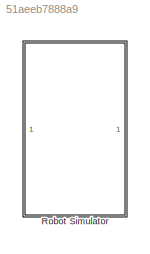
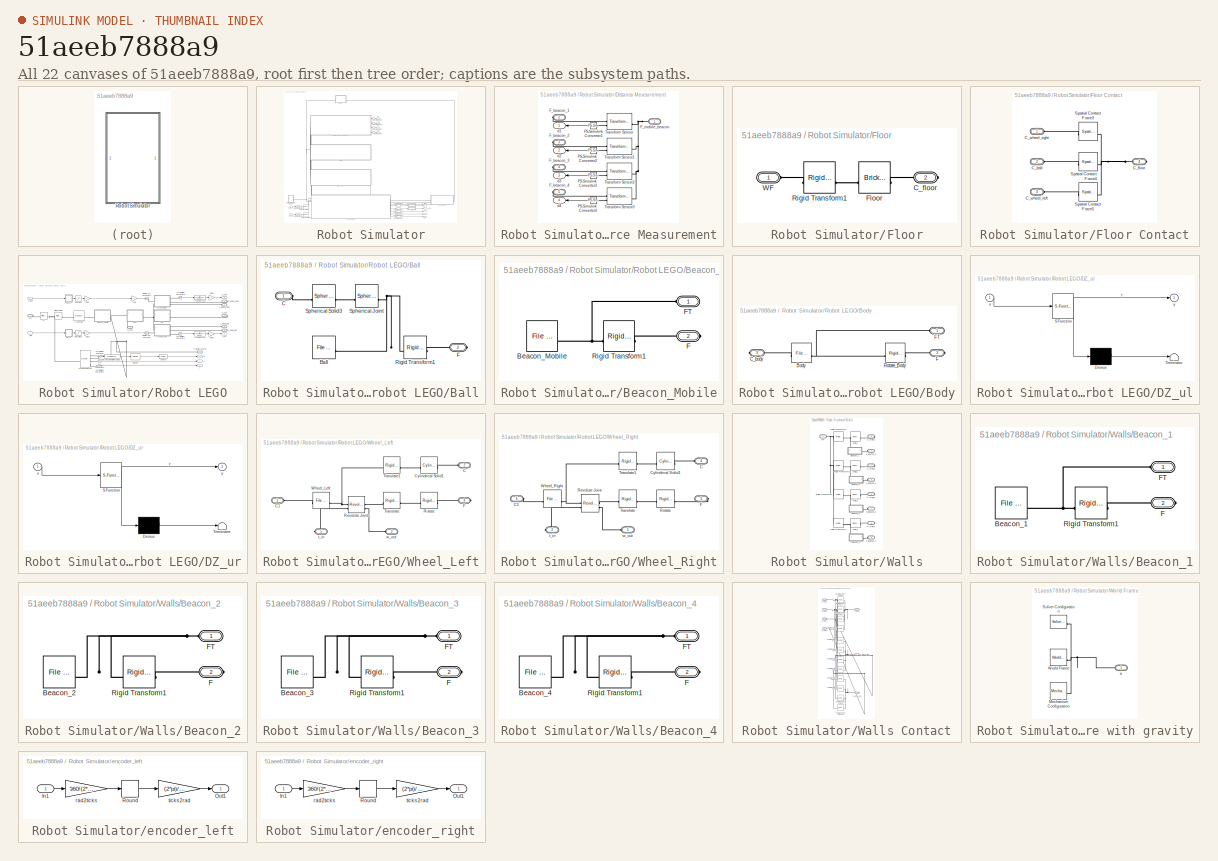
[diagram: thumbnail index - all 22 canvases of the model, root first then tree order]
MODEL slx_51aeeb7888a9
KIND model
CONFIG AbsTol = 1e-3
CONFIG EnableMultiTasking = on
CONFIG FixedStep = 0.0001
CONFIG InitFcn = % Robot Parameters\nKt = 0.003741357004383;\nD = 5.34730602234005E-4;\n\n% Frictional Force - Rubber\nFF1_CSF = 0.9284638557008941;\nFF1_CDF = 0.5059370572403004;\n\n% Frictional Force - Steel\nFF2_CSF = 0.6619328694233608;\nFF2_CDF = 0.4348835330132442;\n\n% Initial Robot Position\nX_0  = 1; % m\nY_0  = 0; % m\nTh_0 = 0; % rad\n\n% Inverse Kinematics\n% ROBOT MODEL PARAMETERS\nr = 0.028; % m - Wheel radius of vehic...<+236ch>
CONFIG MaxStep = auto
CONFIG MinStep = auto
CONFIG RelTol = 1e-3
CONFIG SampleTimeConstraint = Unconstrained
CONFIG SolverName = ode8
CONFIG StartTime = 0.0
CONFIG StopTime = 5
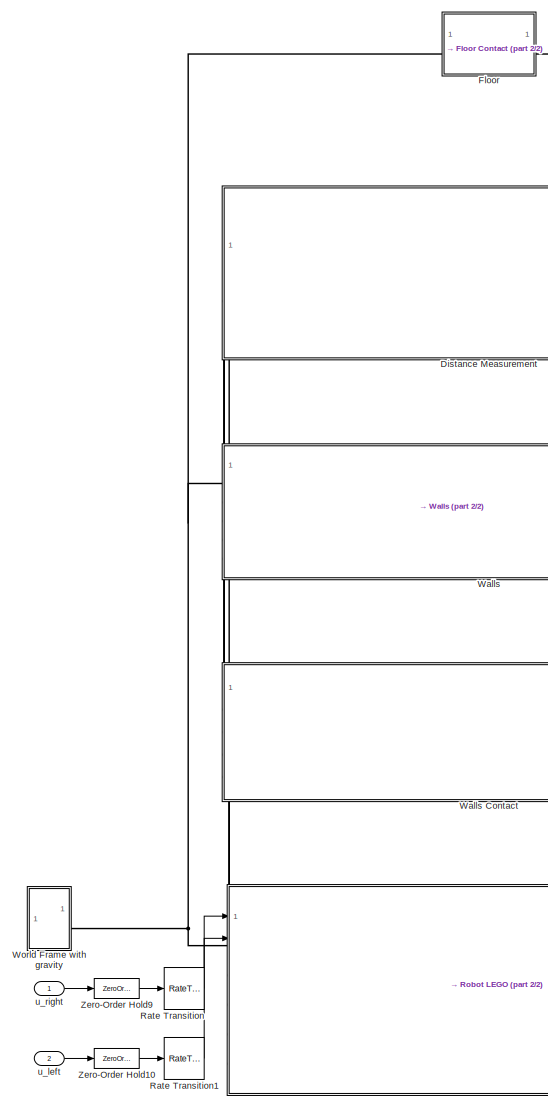
[diagram: Robot Simulator - part 1/2, left side, full height]
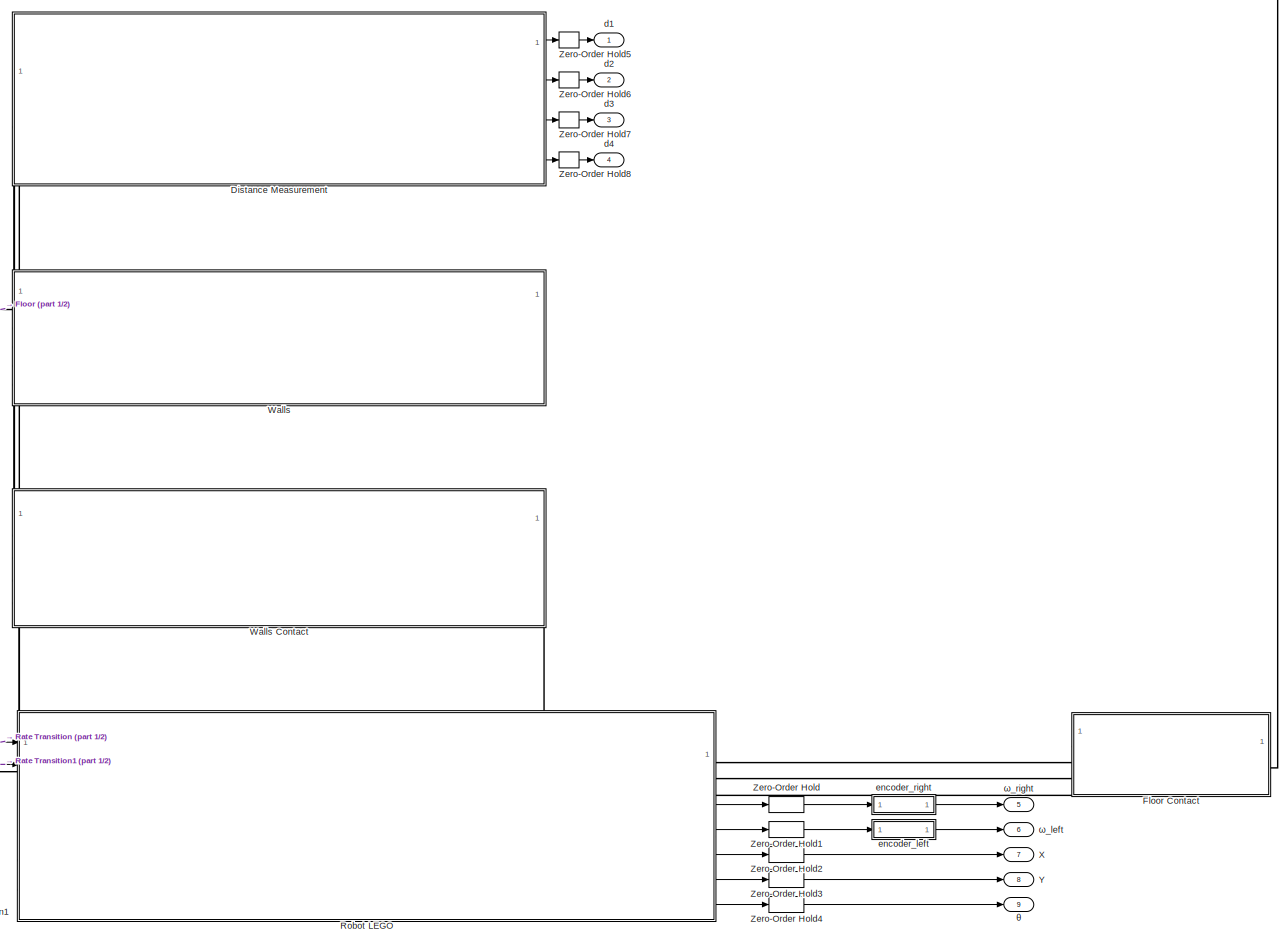
[diagram: Robot Simulator - part 2/2, most of the canvas]
BLOCK [SubSystem] Robot Simulator
BLOCK [SubSystem] Robot Simulator/Distance Measurement
  PortSchema = {"entries":[{"content":{"sides":[{"content":{"connectorIds":[]},"type":"ConnectorPlacement.EquallySpacedRectSide","uuid":"3f47ab04-4b76-437e-b8bc-2e939f58c128"},{"content":{"connectorIds":["Out1","Out2","Out3","Out4"],"side":"RIGHT"},"type":"ConnectorPlacement.EquallySpacedRectSide","uuid":"0a7d77bc-d78c-4d7c-bea5-44b269f1c126"},{"content":{"connectorIds":["LConn1"],"side":"TOP"},"type":"Connector...<+587ch>
BLOCK [PMIOPort] Robot Simulator/Distance Measurement/ F_beacon_1
  NameLocation = top
  Port = 2
  Side = Right
BLOCK [PMIOPort] Robot Simulator/Distance Measurement/F_beacon_2
  NameLocation = top
  Port = 3
  Side = Right
BLOCK [PMIOPort] Robot Simulator/Distance Measurement/F_beacon_3
  NameLocation = top
  Port = 4
  Side = Right
BLOCK [PMIOPort] Robot Simulator/Distance Measurement/F_beacon_4
  NameLocation = top
  Port = 5
  Side = Right
BLOCK [PMIOPort] Robot Simulator/Distance Measurement/F_mobile_beacon
  NameLocation = top
  Side = Left
BLOCK [Reference] Robot Simulator/Distance Measurement/PS-Simulink Converter1  REF=nesl_utility/PS-Simulink
Converter
  NameLocation = top
  SourceBlock = nesl_utility/PS-Simulink\nConverter
  SourceType = PS-Simulink\nConverter
BLOCK [Reference] Robot Simulator/Distance Measurement/PS-Simulink Converter2  REF=nesl_utility/PS-Simulink
Converter
  NameLocation = top
  SourceBlock = nesl_utility/PS-Simulink\nConverter
  SourceType = PS-Simulink\nConverter
BLOCK [Reference] Robot Simulator/Distance Measurement/PS-Simulink Converter3  REF=nesl_utility/PS-Simulink
Converter
  NameLocation = top
  SourceBlock = nesl_utility/PS-Simulink\nConverter
  SourceType = PS-Simulink\nConverter
BLOCK [Reference] Robot Simulator/Distance Measurement/PS-Simulink Converter4  REF=nesl_utility/PS-Simulink
Converter
  NameLocation = top
  SourceBlock = nesl_utility/PS-Simulink\nConverter
  SourceType = PS-Simulink\nConverter
BLOCK [Reference] Robot Simulator/Distance Measurement/Transform Sensor  REF=sm_lib/Frames and
Transforms/Transform
Sensor
  NameLocation = top
  SourceBlock = sm_lib/Frames and\nTransforms/Transform\nSensor
  SourceType = Transform\nSensor
BLOCK [Reference] Robot Simulator/Distance Measurement/Transform Sensor1  REF=sm_lib/Frames and
Transforms/Transform
Sensor
  NameLocation = top
  SourceBlock = sm_lib/Frames and\nTransforms/Transform\nSensor
  SourceType = Transform\nSensor
BLOCK [Reference] Robot Simulator/Distance Measurement/Transform Sensor2  REF=sm_lib/Frames and
Transforms/Transform
Sensor
  NameLocation = top
  SourceBlock = sm_lib/Frames and\nTransforms/Transform\nSensor
  SourceType = Transform\nSensor
BLOCK [Reference] Robot Simulator/Distance Measurement/Transform Sensor3  REF=sm_lib/Frames and
Transforms/Transform
Sensor
  NameLocation = top
  SourceBlock = sm_lib/Frames and\nTransforms/Transform\nSensor
  SourceType = Transform\nSensor
BLOCK [Outport] Robot Simulator/Distance Measurement/d1
  NameLocation = left
BLOCK [Outport] Robot Simulator/Distance Measurement/d2
  NameLocation = left
  Port = 2
BLOCK [Outport] Robot Simulator/Distance Measurement/d3
  NameLocation = left
  Port = 3
BLOCK [Outport] Robot Simulator/Distance Measurement/d4
  NameLocation = left
  Port = 4
BLOCK [SubSystem] Robot Simulator/Floor
BLOCK [SubSystem] Robot Simulator/Floor Contact
BLOCK [PMIOPort] Robot Simulator/Floor Contact/C_ball
  NameLocation = left
  Port = 2
  Side = Left
BLOCK [PMIOPort] Robot Simulator/Floor Contact/C_floor
  NameLocation = top
  Port = 4
  Side = Right
BLOCK [PMIOPort] Robot Simulator/Floor Contact/C_wheel_left
  NameLocation = left
  Port = 3
  Side = Left
BLOCK [PMIOPort] Robot Simulator/Floor Contact/C_wheel_right
  NameLocation = left
  Side = Left
BLOCK [Reference] Robot Simulator/Floor Contact/Spatial Contact Force3  REF=sm_lib/Forces and
Torques/Spatial
Contact Force
  NameLocation = top
  SourceBlock = sm_lib/Forces and\nTorques/Spatial\nContact Force
  SourceType = Spatial\nContact Force
BLOCK [Reference] Robot Simulator/Floor Contact/Spatial Contact Force4  REF=sm_lib/Forces and
Torques/Spatial
Contact Force
  NameLocation = top
  SourceBlock = sm_lib/Forces and\nTorques/Spatial\nContact Force
  SourceType = Spatial\nContact Force
BLOCK [Reference] Robot Simulator/Floor Contact/Spatial Contact Force5  REF=sm_lib/Forces and
Torques/Spatial
Contact Force
  NameLocation = top
  SourceBlock = sm_lib/Forces and\nTorques/Spatial\nContact Force
  SourceType = Spatial\nContact Force
BLOCK [PMIOPort] Robot Simulator/Floor/C_floor
  NameLocation = top
  Port = 2
  Side = Right
BLOCK [Reference] Robot Simulator/Floor/Floor  REF=sm_lib/Body Elements/Brick Solid
  NameLocation = top
  SourceBlock = sm_lib/Body Elements/Brick Solid
  SourceType = Brick Solid
BLOCK [Reference] Robot Simulator/Floor/Rigid Transform1  REF=sm_lib/Frames and
Transforms/Rigid
Transform
  SourceBlock = sm_lib/Frames and\nTransforms/Rigid\nTransform
  SourceType = Rigid\nTransform
BLOCK [PMIOPort] Robot Simulator/Floor/WF
  NameLocation = top
  Side = Left
BLOCK [RateTransition] Robot Simulator/Rate Transition
BLOCK [RateTransition] Robot Simulator/Rate Transition1
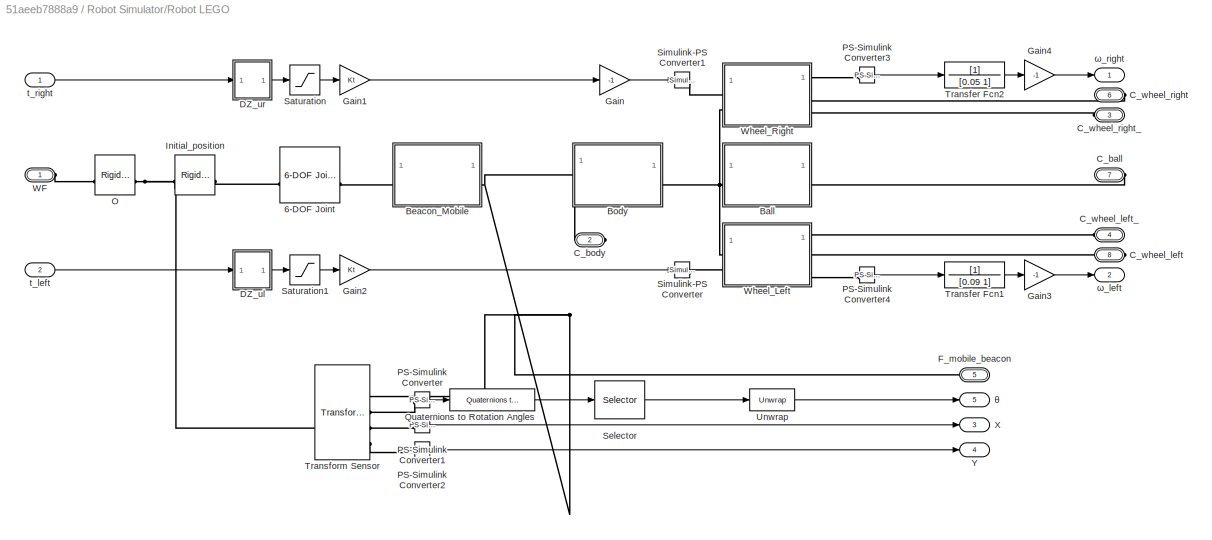
BLOCK [SubSystem] Robot Simulator/Robot LEGO
  PortSchema = {"entries":[{"content":{"sides":[{"content":{"connectorIds":["LConn1","In1","In2"]},"type":"ConnectorPlacement.EquallySpacedRectSide","uuid":"3745dc98-1e66-4b60-b925-e2dd9b5d1701"},{"content":{"connectorIds":["RConn1","RConn2","RConn3","Out1","Out2","Out3","Out4","Out5"],"side":"RIGHT"},"type":"ConnectorPlacement.EquallySpacedRectSide","uuid":"5cae1f17-a77c-47fa-a0e9-501bcfa0c672"},{"content":{"co...<+489ch>
BLOCK [Reference] Robot Simulator/Robot LEGO/6-DOF Joint  REF=sm_lib/Joints/6-DOF Joint
  SourceBlock = sm_lib/Joints/6-DOF Joint
  SourceType = 6-DOF Joint
BLOCK [SubSystem] Robot Simulator/Robot LEGO/Ball
BLOCK [Reference] Robot Simulator/Robot LEGO/Ball/Ball  REF=sm_lib/Body Elements/File Solid
  NameLocation = top
  SourceBlock = sm_lib/Body Elements/File Solid
  SourceType = File Solid
BLOCK [PMIOPort] Robot Simulator/Robot LEGO/Ball/C
  NameLocation = top
  Side = Left
BLOCK [PMIOPort] Robot Simulator/Robot LEGO/Ball/F
  Port = 2
  Side = Right
BLOCK [Reference] Robot Simulator/Robot LEGO/Ball/Rigid Transform1  REF=sm_lib/Frames and
Transforms/Rigid
Transform
  SourceBlock = sm_lib/Frames and\nTransforms/Rigid\nTransform
  SourceType = Rigid\nTransform
BLOCK [Reference] Robot Simulator/Robot LEGO/Ball/Spherical Joint  REF=sm_lib/Joints/Spherical
Joint
  SourceBlock = sm_lib/Joints/Spherical\nJoint
  SourceType = Spherical\nJoint
BLOCK [Reference] Robot Simulator/Robot LEGO/Ball/Spherical Solid3  REF=sm_lib/Body Elements/Spherical Solid
  NameLocation = top
  SourceBlock = sm_lib/Body Elements/Spherical Solid
  SourceType = Spherical Solid
BLOCK [SubSystem] Robot Simulator/Robot LEGO/Beacon_Mobile
BLOCK [Reference] Robot Simulator/Robot LEGO/Beacon_Mobile/Beacon_Mobile  REF=sm_lib/Body Elements/File Solid
  NameLocation = top
  SourceBlock = sm_lib/Body Elements/File Solid
  SourceType = File Solid
BLOCK [PMIOPort] Robot Simulator/Robot LEGO/Beacon_Mobile/F
  Port = 2
  Side = Right
BLOCK [PMIOPort] Robot Simulator/Robot LEGO/Beacon_Mobile/FT
  Side = Left
BLOCK [Reference] Robot Simulator/Robot LEGO/Beacon_Mobile/Rigid Transform1  REF=sm_lib/Frames and
Transforms/Rigid
Transform
  SourceBlock = sm_lib/Frames and\nTransforms/Rigid\nTransform
  SourceType = Rigid\nTransform
BLOCK [SubSystem] Robot Simulator/Robot LEGO/Body
  NameLocation = top
  PortSchema = {"entries":[{"content":{"sides":[{"content":{"connectorIds":["LConn1"]},"type":"ConnectorPlacement.EquallySpacedRectSide","uuid":"2a79041d-d4bb-4a89-80e8-e8109143e926"},{"content":{"connectorIds":["RConn1"],"side":"RIGHT"},"type":"ConnectorPlacement.EquallySpacedRectSide","uuid":"e9dc1adc-06bd-4a2c-b580-ae25a867185f"},{"content":{"connectorIds":[],"side":"TOP"},"type":"ConnectorPlacement.EquallySp...<+541ch>
BLOCK [Reference] Robot Simulator/Robot LEGO/Body/Body  REF=sm_lib/Body Elements/File Solid
  NameLocation = top
  SourceBlock = sm_lib/Body Elements/File Solid
  SourceType = File Solid
BLOCK [PMIOPort] Robot Simulator/Robot LEGO/Body/C_body
  NameLocation = left
  Port = 3
  Side = Right
BLOCK [PMIOPort] Robot Simulator/Robot LEGO/Body/F
  Port = 2
  Side = Right
BLOCK [PMIOPort] Robot Simulator/Robot LEGO/Body/FT
  Side = Left
BLOCK [Reference] Robot Simulator/Robot LEGO/Body/Rotate_Body  REF=sm_lib/Frames and
Transforms/Rigid
Transform
  SourceBlock = sm_lib/Frames and\nTransforms/Rigid\nTransform
  SourceType = Rigid\nTransform
BLOCK [PMIOPort] Robot Simulator/Robot LEGO/C_ball
  NameLocation = right
  Port = 7
  Side = Right
BLOCK [PMIOPort] Robot Simulator/Robot LEGO/C_body
  NameLocation = left
  Port = 2
  Side = Left
BLOCK [PMIOPort] Robot Simulator/Robot LEGO/C_wheel_left
  NameLocation = right
  Port = 8
  Side = Right
BLOCK [PMIOPort] Robot Simulator/Robot LEGO/C_wheel_left_
  NameLocation = right
  Port = 4
  Side = Left
BLOCK [PMIOPort] Robot Simulator/Robot LEGO/C_wheel_right
  NameLocation = right
  Port = 6
  Side = Right
BLOCK [PMIOPort] Robot Simulator/Robot LEGO/C_wheel_right_
  NameLocation = right
  Port = 3
  Side = Left
BLOCK [SubSystem] Robot Simulator/Robot LEGO/DZ_ul
  ErrorFcn = Stateflow.Translate.translate
  PermitHierarchicalResolution = ExplicitOnly
  SFBlockType = MATLAB Function
  TreatAsAtomicUnit = on
BLOCK [Demux] Robot Simulator/Robot LEGO/DZ_ul/ Demux 
  Outputs = 1
BLOCK [S-Function] Robot Simulator/Robot LEGO/DZ_ul/ SFunction 
  EnableBusSupport = on
  FunctionName = sf_sfun
  PortCounts = [1 2]
  SFcnIsStateOwnerBlock = off
  SFunctionDeploymentMode = off
  Tag = Stateflow S-Function 2
BLOCK [Terminator] Robot Simulator/Robot LEGO/DZ_ul/ Terminator 
BLOCK [Inport] Robot Simulator/Robot LEGO/DZ_ul/u
BLOCK [Outport] Robot Simulator/Robot LEGO/DZ_ul/y
BLOCK [SubSystem] Robot Simulator/Robot LEGO/DZ_ur
  ErrorFcn = Stateflow.Translate.translate
  PermitHierarchicalResolution = ExplicitOnly
  SFBlockType = MATLAB Function
  TreatAsAtomicUnit = on
BLOCK [Demux] Robot Simulator/Robot LEGO/DZ_ur/ Demux 
  Outputs = 1
BLOCK [S-Function] Robot Simulator/Robot LEGO/DZ_ur/ SFunction 
  EnableBusSupport = on
  FunctionName = sf_sfun
  PortCounts = [1 2]
  SFcnIsStateOwnerBlock = off
  SFunctionDeploymentMode = off
  Tag = Stateflow S-Function 1
BLOCK [Terminator] Robot Simulator/Robot LEGO/DZ_ur/ Terminator 
BLOCK [Inport] Robot Simulator/Robot LEGO/DZ_ur/u
BLOCK [Outport] Robot Simulator/Robot LEGO/DZ_ur/y
BLOCK [PMIOPort] Robot Simulator/Robot LEGO/F_mobile_beacon
  NameLocation = right
  Port = 5
  Side = Left
BLOCK [Gain] Robot Simulator/Robot LEGO/Gain
  Gain = -1
BLOCK [Gain] Robot Simulator/Robot LEGO/Gain1
  Gain = Kt
BLOCK [Gain] Robot Simulator/Robot LEGO/Gain2
  Gain = Kt
BLOCK [Gain] Robot Simulator/Robot LEGO/Gain3
  Commented = through
  Gain = -1
BLOCK [Gain] Robot Simulator/Robot LEGO/Gain4
  Gain = -1
BLOCK [Reference] Robot Simulator/Robot LEGO/Initial_position  REF=sm_lib/Frames and
Transforms/Rigid
Transform
  SourceBlock = sm_lib/Frames and\nTransforms/Rigid\nTransform
  SourceType = Rigid\nTransform
BLOCK [Reference] Robot Simulator/Robot LEGO/O  REF=sm_lib/Frames and
Transforms/Rigid
Transform
  SourceBlock = sm_lib/Frames and\nTransforms/Rigid\nTransform
  SourceType = Rigid\nTransform
BLOCK [Reference] Robot Simulator/Robot LEGO/PS-Simulink Converter  REF=nesl_utility/PS-Simulink
Converter
  SourceBlock = nesl_utility/PS-Simulink\nConverter
  SourceType = PS-Simulink\nConverter
BLOCK [Reference] Robot Simulator/Robot LEGO/PS-Simulink Converter1  REF=nesl_utility/PS-Simulink
Converter
  SourceBlock = nesl_utility/PS-Simulink\nConverter
  SourceType = PS-Simulink\nConverter
BLOCK [Reference] Robot Simulator/Robot LEGO/PS-Simulink Converter2  REF=nesl_utility/PS-Simulink
Converter
  SourceBlock = nesl_utility/PS-Simulink\nConverter
  SourceType = PS-Simulink\nConverter
BLOCK [Reference] Robot Simulator/Robot LEGO/PS-Simulink Converter3  REF=nesl_utility/PS-Simulink
Converter
  SourceBlock = nesl_utility/PS-Simulink\nConverter
  SourceType = PS-Simulink\nConverter
BLOCK [Reference] Robot Simulator/Robot LEGO/PS-Simulink Converter4  REF=nesl_utility/PS-Simulink
Converter
  SourceBlock = nesl_utility/PS-Simulink\nConverter
  SourceType = PS-Simulink\nConverter
BLOCK [Reference] Robot Simulator/Robot LEGO/Quaternions to Rotation Angles  REF=sharedtransform/Quaternions to Rotation Angles
  AttributesFormatString = Rotation Order: %<rotationOrder>
  SourceBlock = sharedtransform/Quaternions to Rotation Angles
  SourceType = Quat2Ang
BLOCK [Saturate] Robot Simulator/Robot LEGO/Saturation
  LowerLimit = -100
  UpperLimit = 100
BLOCK [Saturate] Robot Simulator/Robot LEGO/Saturation1
  LowerLimit = -100
  UpperLimit = 100
BLOCK [Selector] Robot Simulator/Robot LEGO/Selector
  IndexOptions = Index vector (dialog)
  Indices = [1]
  InputPortWidth = 3
  OutputSizes = 1
BLOCK [Reference] Robot Simulator/Robot LEGO/Simulink-PS Converter  REF=nesl_utility/Simulink-PS
Converter
  SourceBlock = nesl_utility/Simulink-PS\nConverter
  SourceType = Simulink-PS\nConverter
BLOCK [Reference] Robot Simulator/Robot LEGO/Simulink-PS Converter1  REF=nesl_utility/Simulink-PS
Converter
  SourceBlock = nesl_utility/Simulink-PS\nConverter
  SourceType = Simulink-PS\nConverter
BLOCK [TransferFcn] Robot Simulator/Robot LEGO/Transfer Fcn1
  Denominator = [0.09 1]
BLOCK [TransferFcn] Robot Simulator/Robot LEGO/Transfer Fcn2
  Denominator = [0.05 1]
BLOCK [Reference] Robot Simulator/Robot LEGO/Transform Sensor  REF=sm_lib/Frames and
Transforms/Transform
Sensor
  SourceBlock = sm_lib/Frames and\nTransforms/Transform\nSensor
  SourceType = Transform\nSensor
BLOCK [Reference] Robot Simulator/Robot LEGO/Unwrap  REF=dspsigops/Unwrap
  SourceBlock = dspsigops/Unwrap
  SourceType = Unwrap
  UserDataPersistent = on
BLOCK [PMIOPort] Robot Simulator/Robot LEGO/WF
  NameLocation = left
  Side = Left
BLOCK [SubSystem] Robot Simulator/Robot LEGO/Wheel_Left
BLOCK [PMIOPort] Robot Simulator/Robot LEGO/Wheel_Left/C
  Port = 2
  Side = Left
BLOCK [PMIOPort] Robot Simulator/Robot LEGO/Wheel_Left/C1
  NameLocation = top
  Side = Left
BLOCK [Reference] Robot Simulator/Robot LEGO/Wheel_Left/Cylindrical Solid1  REF=sm_lib/Body Elements/Cylindrical Solid
  NameLocation = top
  SourceBlock = sm_lib/Body Elements/Cylindrical Solid
  SourceType = Cylindrical Solid
BLOCK [PMIOPort] Robot Simulator/Robot LEGO/Wheel_Left/F
  Port = 4
  Side = Right
BLOCK [Reference] Robot Simulator/Robot LEGO/Wheel_Left/Revolute Joint  REF=sm_lib/Joints/Revolute Joint
  SourceBlock = sm_lib/Joints/Revolute Joint
  SourceType = Revolute Joint
BLOCK [Reference] Robot Simulator/Robot LEGO/Wheel_Left/Rotate  REF=sm_lib/Frames and
Transforms/Rigid
Transform
  SourceBlock = sm_lib/Frames and\nTransforms/Rigid\nTransform
  SourceType = Rigid\nTransform
BLOCK [Reference] Robot Simulator/Robot LEGO/Wheel_Left/Translate  REF=sm_lib/Frames and
Transforms/Rigid
Transform
  SourceBlock = sm_lib/Frames and\nTransforms/Rigid\nTransform
  SourceType = Rigid\nTransform
BLOCK [Reference] Robot Simulator/Robot LEGO/Wheel_Left/Translate1  REF=sm_lib/Frames and
Transforms/Rigid
Transform
  NameLocation = top
  SourceBlock = sm_lib/Frames and\nTransforms/Rigid\nTransform
  SourceType = Rigid\nTransform
BLOCK [Reference] Robot Simulator/Robot LEGO/Wheel_Left/Wheel_Left  REF=sm_lib/Body Elements/File Solid
  NameLocation = top
  SourceBlock = sm_lib/Body Elements/File Solid
  SourceType = File Solid
BLOCK [PMIOPort] Robot Simulator/Robot LEGO/Wheel_Left/t_in
  NameLocation = top
  Port = 5
  Side = Right
BLOCK [PMIOPort] Robot Simulator/Robot LEGO/Wheel_Left/w_out
  NameLocation = top
  Port = 3
  Side = Left
BLOCK [SubSystem] Robot Simulator/Robot LEGO/Wheel_Right
BLOCK [PMIOPort] Robot Simulator/Robot LEGO/Wheel_Right/C
  Port = 4
  Side = Left
BLOCK [PMIOPort] Robot Simulator/Robot LEGO/Wheel_Right/C1
  NameLocation = top
  Port = 5
  Side = Left
BLOCK [Reference] Robot Simulator/Robot LEGO/Wheel_Right/Cylindrical Solid1  REF=sm_lib/Body Elements/Cylindrical Solid
  NameLocation = top
  SourceBlock = sm_lib/Body Elements/Cylindrical Solid
  SourceType = Cylindrical Solid
BLOCK [PMIOPort] Robot Simulator/Robot LEGO/Wheel_Right/F
  Port = 3
  Side = Right
BLOCK [Reference] Robot Simulator/Robot LEGO/Wheel_Right/Revolute Joint  REF=sm_lib/Joints/Revolute Joint
  SourceBlock = sm_lib/Joints/Revolute Joint
  SourceType = Revolute Joint
BLOCK [Reference] Robot Simulator/Robot LEGO/Wheel_Right/Rotate  REF=sm_lib/Frames and
Transforms/Rigid
Transform
  SourceBlock = sm_lib/Frames and\nTransforms/Rigid\nTransform
  SourceType = Rigid\nTransform
BLOCK [Reference] Robot Simulator/Robot LEGO/Wheel_Right/Translate  REF=sm_lib/Frames and
Transforms/Rigid
Transform
  SourceBlock = sm_lib/Frames and\nTransforms/Rigid\nTransform
  SourceType = Rigid\nTransform
BLOCK [Reference] Robot Simulator/Robot LEGO/Wheel_Right/Translate1  REF=sm_lib/Frames and
Transforms/Rigid
Transform
  NameLocation = top
  SourceBlock = sm_lib/Frames and\nTransforms/Rigid\nTransform
  SourceType = Rigid\nTransform
BLOCK [Reference] Robot Simulator/Robot LEGO/Wheel_Right/Wheel_Right  REF=sm_lib/Body Elements/File Solid
  NameLocation = top
  SourceBlock = sm_lib/Body Elements/File Solid
  SourceType = File Solid
BLOCK [PMIOPort] Robot Simulator/Robot LEGO/Wheel_Right/t_in
  NameLocation = top
  Port = 2
  Side = Right
BLOCK [PMIOPort] Robot Simulator/Robot LEGO/Wheel_Right/w_out
  NameLocation = top
  Side = Left
BLOCK [Outport] Robot Simulator/Robot LEGO/X
  NameLocation = right
  Port = 3
BLOCK [Outport] Robot Simulator/Robot LEGO/Y
  NameLocation = right
  Port = 4
BLOCK [Inport] Robot Simulator/Robot LEGO/t_left
  NameLocation = left
  Port = 2
BLOCK [Inport] Robot Simulator/Robot LEGO/t_right
  NameLocation = left
BLOCK [Outport] Robot Simulator/Robot LEGO/θ
  NameLocation = right
  Port = 5
BLOCK [Outport] Robot Simulator/Robot LEGO/ω_left
  NameLocation = right
  Port = 2
BLOCK [Outport] Robot Simulator/Robot LEGO/ω_right
  NameLocation = right
BLOCK [SubSystem] Robot Simulator/Walls
  PortSchema = {"entries":[{"content":{"sides":[{"content":{"connectorIds":["LConn1"]},"type":"ConnectorPlacement.EquallySpacedRectSide","uuid":"085e49d9-94af-4a62-b5cf-52d0ec64dfe6"},{"content":{"connectorIds":[],"side":"RIGHT"},"type":"ConnectorPlacement.EquallySpacedRectSide","uuid":"3b04bbf5-b05a-4de3-a22a-d1fff3a1f449"},{"content":{"connectorIds":["LConn2","LConn3","LConn4","LConn5"],"side":"TOP"},"type":"C...<+595ch>
BLOCK [SubSystem] Robot Simulator/Walls Contact
  NameLocation = top
  PortSchema = {"entries":[{"content":{"sides":[{"content":{"connectorIds":[]},"type":"ConnectorPlacement.EquallySpacedRectSide","uuid":"7dfcd518-b49f-4e91-b0dd-a865cbfaed41"},{"content":{"connectorIds":[],"side":"RIGHT"},"type":"ConnectorPlacement.EquallySpacedRectSide","uuid":"cfb2bd1c-65ce-4397-9519-784840b32785"},{"content":{"connectorIds":["LConn1","LConn2","LConn3","LConn4"],"side":"TOP"},"type":"Connector...<+578ch>
BLOCK [PMIOPort] Robot Simulator/Walls Contact/C_body
  NameLocation = top
  Port = 5
  Side = Right
BLOCK [PMIOPort] Robot Simulator/Walls Contact/C_wall_1
  NameLocation = left
  Side = Left
BLOCK [PMIOPort] Robot Simulator/Walls Contact/C_wall_2
  NameLocation = left
  Port = 2
  Side = Left
BLOCK [PMIOPort] Robot Simulator/Walls Contact/C_wall_3
  NameLocation = left
  Port = 3
  Side = Left
BLOCK [PMIOPort] Robot Simulator/Walls Contact/C_wall_4
  NameLocation = left
  Port = 4
  Side = Left
BLOCK [PMIOPort] Robot Simulator/Walls Contact/C_wheel_left_
  Port = 7
  Side = Right
BLOCK [PMIOPort] Robot Simulator/Walls Contact/C_wheel_right_
  Port = 6
  Side = Right
BLOCK [Reference] Robot Simulator/Walls Contact/Spatial Contact Force  REF=sm_lib/Forces and
Torques/Spatial
Contact Force
  SourceBlock = sm_lib/Forces and\nTorques/Spatial\nContact Force
  SourceType = Spatial\nContact Force
BLOCK [Reference] Robot Simulator/Walls Contact/Spatial Contact Force1  REF=sm_lib/Forces and
Torques/Spatial
Contact Force
  SourceBlock = sm_lib/Forces and\nTorques/Spatial\nContact Force
  SourceType = Spatial\nContact Force
BLOCK [Reference] Robot Simulator/Walls Contact/Spatial Contact Force10  REF=sm_lib/Forces and
Torques/Spatial
Contact Force
  SourceBlock = sm_lib/Forces and\nTorques/Spatial\nContact Force
  SourceType = Spatial\nContact Force
BLOCK [Reference] Robot Simulator/Walls Contact/Spatial Contact Force11  REF=sm_lib/Forces and
Torques/Spatial
Contact Force
  SourceBlock = sm_lib/Forces and\nTorques/Spatial\nContact Force
  SourceType = Spatial\nContact Force
BLOCK [Reference] Robot Simulator/Walls Contact/Spatial Contact Force2  REF=sm_lib/Forces and
Torques/Spatial
Contact Force
  SourceBlock = sm_lib/Forces and\nTorques/Spatial\nContact Force
  SourceType = Spatial\nContact Force
BLOCK [Reference] Robot Simulator/Walls Contact/Spatial Contact Force3  REF=sm_lib/Forces and
Torques/Spatial
Contact Force
  SourceBlock = sm_lib/Forces and\nTorques/Spatial\nContact Force
  SourceType = Spatial\nContact Force
BLOCK [Reference] Robot Simulator/Walls Contact/Spatial Contact Force4  REF=sm_lib/Forces and
Torques/Spatial
Contact Force
  SourceBlock = sm_lib/Forces and\nTorques/Spatial\nContact Force
  SourceType = Spatial\nContact Force
BLOCK [Reference] Robot Simulator/Walls Contact/Spatial Contact Force5  REF=sm_lib/Forces and
Torques/Spatial
Contact Force
  SourceBlock = sm_lib/Forces and\nTorques/Spatial\nContact Force
  SourceType = Spatial\nContact Force
BLOCK [Reference] Robot Simulator/Walls Contact/Spatial Contact Force6  REF=sm_lib/Forces and
Torques/Spatial
Contact Force
  SourceBlock = sm_lib/Forces and\nTorques/Spatial\nContact Force
  SourceType = Spatial\nContact Force
BLOCK [Reference] Robot Simulator/Walls Contact/Spatial Contact Force7  REF=sm_lib/Forces and
Torques/Spatial
Contact Force
  SourceBlock = sm_lib/Forces and\nTorques/Spatial\nContact Force
  SourceType = Spatial\nContact Force
BLOCK [Reference] Robot Simulator/Walls Contact/Spatial Contact Force8  REF=sm_lib/Forces and
Torques/Spatial
Contact Force
  SourceBlock = sm_lib/Forces and\nTorques/Spatial\nContact Force
  SourceType = Spatial\nContact Force
BLOCK [Reference] Robot Simulator/Walls Contact/Spatial Contact Force9  REF=sm_lib/Forces and
Torques/Spatial
Contact Force
  SourceBlock = sm_lib/Forces and\nTorques/Spatial\nContact Force
  SourceType = Spatial\nContact Force
BLOCK [SubSystem] Robot Simulator/Walls/Beacon_1
  NameLocation = top
BLOCK [Reference] Robot Simulator/Walls/Beacon_1/Beacon_1  REF=sm_lib/Body Elements/File Solid
  NameLocation = top
  SourceBlock = sm_lib/Body Elements/File Solid
  SourceType = File Solid
BLOCK [PMIOPort] Robot Simulator/Walls/Beacon_1/F
  Port = 2
  Side = Right
BLOCK [PMIOPort] Robot Simulator/Walls/Beacon_1/FT
  Side = Left
BLOCK [Reference] Robot Simulator/Walls/Beacon_1/Rigid Transform1  REF=sm_lib/Frames and
Transforms/Rigid
Transform
  SourceBlock = sm_lib/Frames and\nTransforms/Rigid\nTransform
  SourceType = Rigid\nTransform
BLOCK [SubSystem] Robot Simulator/Walls/Beacon_2
  NameLocation = top
BLOCK [Reference] Robot Simulator/Walls/Beacon_2/Beacon_2  REF=sm_lib/Body Elements/File Solid
  NameLocation = top
  SourceBlock = sm_lib/Body Elements/File Solid
  SourceType = File Solid
BLOCK [PMIOPort] Robot Simulator/Walls/Beacon_2/F
  Port = 2
  Side = Right
BLOCK [PMIOPort] Robot Simulator/Walls/Beacon_2/FT
  Side = Left
BLOCK [Reference] Robot Simulator/Walls/Beacon_2/Rigid Transform1  REF=sm_lib/Frames and
Transforms/Rigid
Transform
  SourceBlock = sm_lib/Frames and\nTransforms/Rigid\nTransform
  SourceType = Rigid\nTransform
BLOCK [SubSystem] Robot Simulator/Walls/Beacon_3
  NameLocation = top
BLOCK [Reference] Robot Simulator/Walls/Beacon_3/Beacon_3  REF=sm_lib/Body Elements/File Solid
  NameLocation = top
  SourceBlock = sm_lib/Body Elements/File Solid
  SourceType = File Solid
BLOCK [PMIOPort] Robot Simulator/Walls/Beacon_3/F
  Port = 2
  Side = Right
BLOCK [PMIOPort] Robot Simulator/Walls/Beacon_3/FT
  Side = Left
BLOCK [Reference] Robot Simulator/Walls/Beacon_3/Rigid Transform1  REF=sm_lib/Frames and
Transforms/Rigid
Transform
  SourceBlock = sm_lib/Frames and\nTransforms/Rigid\nTransform
  SourceType = Rigid\nTransform
BLOCK [SubSystem] Robot Simulator/Walls/Beacon_4
  NameLocation = top
BLOCK [Reference] Robot Simulator/Walls/Beacon_4/Beacon_4  REF=sm_lib/Body Elements/File Solid
  NameLocation = top
  SourceBlock = sm_lib/Body Elements/File Solid
  SourceType = File Solid
BLOCK [PMIOPort] Robot Simulator/Walls/Beacon_4/F
  Port = 2
  Side = Right
BLOCK [PMIOPort] Robot Simulator/Walls/Beacon_4/FT
  Side = Left
BLOCK [Reference] Robot Simulator/Walls/Beacon_4/Rigid Transform1  REF=sm_lib/Frames and
Transforms/Rigid
Transform
  SourceBlock = sm_lib/Frames and\nTransforms/Rigid\nTransform
  SourceType = Rigid\nTransform
BLOCK [PMIOPort] Robot Simulator/Walls/C_wall_1
  NameLocation = top
  Port = 6
  Side = Right
BLOCK [PMIOPort] Robot Simulator/Walls/C_wall_2
  NameLocation = top
  Port = 7
  Side = Right
BLOCK [PMIOPort] Robot Simulator/Walls/C_wall_3
  NameLocation = top
  Port = 8
  Side = Right
BLOCK [PMIOPort] Robot Simulator/Walls/C_wall_4
  NameLocation = top
  Port = 9
  Side = Right
BLOCK [PMIOPort] Robot Simulator/Walls/F_beacon_1
  NameLocation = top
  Port = 2
  Side = Left
BLOCK [PMIOPort] Robot Simulator/Walls/F_beacon_2
  NameLocation = top
  Port = 3
  Side = Left
BLOCK [PMIOPort] Robot Simulator/Walls/F_beacon_3
  NameLocation = top
  Port = 4
  Side = Left
BLOCK [PMIOPort] Robot Simulator/Walls/F_beacon_4
  NameLocation = top
  Port = 5
  Side = Left
BLOCK [Reference] Robot Simulator/Walls/Rigid Transform1  REF=sm_lib/Frames and
Transforms/Rigid
Transform
  SourceBlock = sm_lib/Frames and\nTransforms/Rigid\nTransform
  SourceType = Rigid\nTransform
BLOCK [Reference] Robot Simulator/Walls/Rigid Transform2  REF=sm_lib/Frames and
Transforms/Rigid
Transform
  SourceBlock = sm_lib/Frames and\nTransforms/Rigid\nTransform
  SourceType = Rigid\nTransform
BLOCK [Reference] Robot Simulator/Walls/Rigid Transform3  REF=sm_lib/Frames and
Transforms/Rigid
Transform
  SourceBlock = sm_lib/Frames and\nTransforms/Rigid\nTransform
  SourceType = Rigid\nTransform
BLOCK [Reference] Robot Simulator/Walls/Rigid Transform4  REF=sm_lib/Frames and
Transforms/Rigid
Transform
  SourceBlock = sm_lib/Frames and\nTransforms/Rigid\nTransform
  SourceType = Rigid\nTransform
BLOCK [PMIOPort] Robot Simulator/Walls/WF
  NameLocation = top
  Side = Left
BLOCK [Reference] Robot Simulator/Walls/Wall_1  REF=sm_lib/Body Elements/Brick Solid
  NameLocation = top
  SourceBlock = sm_lib/Body Elements/Brick Solid
  SourceType = Brick Solid
BLOCK [Reference] Robot Simulator/Walls/Wall_2  REF=sm_lib/Body Elements/Brick Solid
  NameLocation = top
  SourceBlock = sm_lib/Body Elements/Brick Solid
  SourceType = Brick Solid
BLOCK [Reference] Robot Simulator/Walls/Wall_3  REF=sm_lib/Body Elements/Brick Solid
  NameLocation = top
  SourceBlock = sm_lib/Body Elements/Brick Solid
  SourceType = Brick Solid
BLOCK [Reference] Robot Simulator/Walls/Wall_4  REF=sm_lib/Body Elements/Brick Solid
  NameLocation = top
  SourceBlock = sm_lib/Body Elements/Brick Solid
  SourceType = Brick Solid
BLOCK [SubSystem] Robot Simulator/World Frame with gravity
BLOCK [Reference] Robot Simulator/World Frame with gravity/Mechanism Configuration  REF=sm_lib/Utilities/Mechanism
Configuration
  SourceBlock = sm_lib/Utilities/Mechanism\nConfiguration
  SourceType = Mechanism\nConfiguration
BLOCK [Reference] Robot Simulator/World Frame with gravity/Solver Configuration  REF=nesl_utility/Solver
Configuration
  SourceBlock = nesl_utility/Solver\nConfiguration
  SourceType = Solver\nConfiguration
BLOCK [Reference] Robot Simulator/World Frame with gravity/World Frame  REF=sm_lib/Frames and
Transforms/World Frame
  SourceBlock = sm_lib/Frames and\nTransforms/World Frame
  SourceType = World Frame
BLOCK [PMIOPort] Robot Simulator/World Frame with gravity/a
  Side = Right
BLOCK [Outport] Robot Simulator/X
  NameLocation = right
  Port = 7
BLOCK [Outport] Robot Simulator/Y
  NameLocation = right
  Port = 8
BLOCK [ZeroOrderHold] Robot Simulator/Zero-Order Hold
  SampleTime = T
BLOCK [ZeroOrderHold] Robot Simulator/Zero-Order Hold1
  SampleTime = T
BLOCK [ZeroOrderHold] Robot Simulator/Zero-Order Hold10
  SampleTime = T
BLOCK [ZeroOrderHold] Robot Simulator/Zero-Order Hold2
  SampleTime = T
BLOCK [ZeroOrderHold] Robot Simulator/Zero-Order Hold3
  SampleTime = T
BLOCK [ZeroOrderHold] Robot Simulator/Zero-Order Hold4
  SampleTime = T
BLOCK [ZeroOrderHold] Robot Simulator/Zero-Order Hold5
  SampleTime = T
BLOCK [ZeroOrderHold] Robot Simulator/Zero-Order Hold6
  SampleTime = T
BLOCK [ZeroOrderHold] Robot Simulator/Zero-Order Hold7
  SampleTime = T
BLOCK [ZeroOrderHold] Robot Simulator/Zero-Order Hold8
  SampleTime = T
BLOCK [ZeroOrderHold] Robot Simulator/Zero-Order Hold9
  SampleTime = T
BLOCK [Outport] Robot Simulator/d1
BLOCK [Outport] Robot Simulator/d2
  Port = 2
BLOCK [Outport] Robot Simulator/d3
  Port = 3
BLOCK [Outport] Robot Simulator/d4
  Port = 4
BLOCK [SubSystem] Robot Simulator/encoder_left
BLOCK [Inport] Robot Simulator/encoder_left/In1
BLOCK [Outport] Robot Simulator/encoder_left/Out1
BLOCK [Rounding] Robot Simulator/encoder_left/Round
  Operator = round
BLOCK [Gain] Robot Simulator/encoder_left/rad2ticks
  Gain = 360/(2*pi)
BLOCK [Gain] Robot Simulator/encoder_left/ticks2rad
  Gain = (2*pi)/360
BLOCK [SubSystem] Robot Simulator/encoder_right
  NameLocation = top
BLOCK [Inport] Robot Simulator/encoder_right/In1
BLOCK [Outport] Robot Simulator/encoder_right/Out1
BLOCK [Rounding] Robot Simulator/encoder_right/Round
  Operator = round
BLOCK [Gain] Robot Simulator/encoder_right/rad2ticks
  Gain = 360/(2*pi)
BLOCK [Gain] Robot Simulator/encoder_right/ticks2rad
  Gain = (2*pi)/360
BLOCK [Inport] Robot Simulator/u_left
  Port = 2
BLOCK [Inport] Robot Simulator/u_right
BLOCK [Outport] Robot Simulator/θ
  NameLocation = right
  Port = 9
BLOCK [Outport] Robot Simulator/ω_left
  NameLocation = right
  Port = 6
BLOCK [Outport] Robot Simulator/ω_right
  NameLocation = right
  Port = 5
LINE Robot Simulator/Distance Measurement/PS-Simulink Converter1:1 -> Robot Simulator/Distance Measurement/d1:1
LINE Robot Simulator/Distance Measurement/PS-Simulink Converter2:1 -> Robot Simulator/Distance Measurement/d2:1
LINE Robot Simulator/Distance Measurement/PS-Simulink Converter3:1 -> Robot Simulator/Distance Measurement/d3:1
LINE Robot Simulator/Distance Measurement/PS-Simulink Converter4:1 -> Robot Simulator/Distance Measurement/d4:1
LINE Robot Simulator/Distance Measurement:1 -> Robot Simulator/Zero-Order Hold5:1
LINE Robot Simulator/Distance Measurement:2 -> Robot Simulator/Zero-Order Hold6:1
LINE Robot Simulator/Distance Measurement:3 -> Robot Simulator/Zero-Order Hold7:1
LINE Robot Simulator/Distance Measurement:4 -> Robot Simulator/Zero-Order Hold8:1
LINE Robot Simulator/Rate Transition1:1 -> Robot Simulator/Robot LEGO:2
LINE Robot Simulator/Rate Transition:1 -> Robot Simulator/Robot LEGO:1
LINE Robot Simulator/Robot LEGO/DZ_ul:1 -> Robot Simulator/Robot LEGO/Saturation1:1
LINE Robot Simulator/Robot LEGO/DZ_ur:1 -> Robot Simulator/Robot LEGO/Saturation:1
LINE Robot Simulator/Robot LEGO/Gain1:1 -> Robot Simulator/Robot LEGO/Gain:1
LINE Robot Simulator/Robot LEGO/Gain2:1 -> Robot Simulator/Robot LEGO/Simulink-PS Converter:1
LINE Robot Simulator/Robot LEGO/Gain3:1 -> Robot Simulator/Robot LEGO/ω_left:1
LINE Robot Simulator/Robot LEGO/Gain4:1 -> Robot Simulator/Robot LEGO/ω_right:1
LINE Robot Simulator/Robot LEGO/Gain:1 -> Robot Simulator/Robot LEGO/Simulink-PS Converter1:1
LINE Robot Simulator/Robot LEGO/PS-Simulink Converter1:1 -> Robot Simulator/Robot LEGO/X:1
LINE Robot Simulator/Robot LEGO/PS-Simulink Converter2:1 -> Robot Simulator/Robot LEGO/Y:1
LINE Robot Simulator/Robot LEGO/PS-Simulink Converter3:1 -> Robot Simulator/Robot LEGO/Transfer Fcn2:1
LINE Robot Simulator/Robot LEGO/PS-Simulink Converter4:1 -> Robot Simulator/Robot LEGO/Transfer Fcn1:1
LINE Robot Simulator/Robot LEGO/PS-Simulink Converter:1 -> Robot Simulator/Robot LEGO/Quaternions to Rotation Angles:1
LINE Robot Simulator/Robot LEGO/Quaternions to Rotation Angles:1 -> Robot Simulator/Robot LEGO/Selector:1
LINE Robot Simulator/Robot LEGO/Saturation1:1 -> Robot Simulator/Robot LEGO/Gain2:1
LINE Robot Simulator/Robot LEGO/Saturation:1 -> Robot Simulator/Robot LEGO/Gain1:1
LINE Robot Simulator/Robot LEGO/Selector:1 -> Robot Simulator/Robot LEGO/Unwrap:1
LINE Robot Simulator/Robot LEGO/Transfer Fcn1:1 -> Robot Simulator/Robot LEGO/Gain3:1
LINE Robot Simulator/Robot LEGO/Transfer Fcn2:1 -> Robot Simulator/Robot LEGO/Gain4:1
LINE Robot Simulator/Robot LEGO/Unwrap:1 -> Robot Simulator/Robot LEGO/θ:1
LINE Robot Simulator/Robot LEGO/t_left:1 -> Robot Simulator/Robot LEGO/DZ_ul:1
LINE Robot Simulator/Robot LEGO/t_right:1 -> Robot Simulator/Robot LEGO/DZ_ur:1
LINE Robot Simulator/Robot LEGO:1 -> Robot Simulator/Zero-Order Hold:1
LINE Robot Simulator/Robot LEGO:2 -> Robot Simulator/Zero-Order Hold1:1
LINE Robot Simulator/Robot LEGO:3 -> Robot Simulator/Zero-Order Hold2:1
LINE Robot Simulator/Robot LEGO:4 -> Robot Simulator/Zero-Order Hold3:1
LINE Robot Simulator/Robot LEGO:5 -> Robot Simulator/Zero-Order Hold4:1
LINE Robot Simulator/Zero-Order Hold10:1 -> Robot Simulator/Rate Transition1:1
LINE Robot Simulator/Zero-Order Hold1:1 -> Robot Simulator/encoder_left:1
LINE Robot Simulator/Zero-Order Hold2:1 -> Robot Simulator/X:1
LINE Robot Simulator/Zero-Order Hold3:1 -> Robot Simulator/Y:1
LINE Robot Simulator/Zero-Order Hold4:1 -> Robot Simulator/θ:1
LINE Robot Simulator/Zero-Order Hold5:1 -> Robot Simulator/d1:1
LINE Robot Simulator/Zero-Order Hold6:1 -> Robot Simulator/d2:1
LINE Robot Simulator/Zero-Order Hold7:1 -> Robot Simulator/d3:1
LINE Robot Simulator/Zero-Order Hold8:1 -> Robot Simulator/d4:1
LINE Robot Simulator/Zero-Order Hold9:1 -> Robot Simulator/Rate Transition:1
LINE Robot Simulator/Zero-Order Hold:1 -> Robot Simulator/encoder_right:1
LINE Robot Simulator/encoder_left/In1:1 -> Robot Simulator/encoder_left/rad2ticks:1
LINE Robot Simulator/encoder_left/Round:1 -> Robot Simulator/encoder_left/ticks2rad:1
LINE Robot Simulator/encoder_left/rad2ticks:1 -> Robot Simulator/encoder_left/Round:1
LINE Robot Simulator/encoder_left/ticks2rad:1 -> Robot Simulator/encoder_left/Out1:1
LINE Robot Simulator/encoder_left:1 -> Robot Simulator/ω_left:1
LINE Robot Simulator/encoder_right/In1:1 -> Robot Simulator/encoder_right/rad2ticks:1
LINE Robot Simulator/encoder_right/Round:1 -> Robot Simulator/encoder_right/ticks2rad:1
LINE Robot Simulator/encoder_right/rad2ticks:1 -> Robot Simulator/encoder_right/Round:1
LINE Robot Simulator/encoder_right/ticks2rad:1 -> Robot Simulator/encoder_right/Out1:1
LINE Robot Simulator/encoder_right:1 -> Robot Simulator/ω_right:1
LINE Robot Simulator/u_left:1 -> Robot Simulator/Zero-Order Hold10:1
LINE Robot Simulator/u_right:1 -> Robot Simulator/Zero-Order Hold9:1
PLINE Robot Simulator/Distance Measurement/ F_beacon_1:RConn1 -- Robot Simulator/Distance Measurement/Transform Sensor:RConn1
PLINE Robot Simulator/Distance Measurement/F_beacon_2:RConn1 -- Robot Simulator/Distance Measurement/Transform Sensor1:RConn1
PLINE Robot Simulator/Distance Measurement/F_beacon_3:RConn1 -- Robot Simulator/Distance Measurement/Transform Sensor2:RConn1
PLINE Robot Simulator/Distance Measurement/F_beacon_4:RConn1 -- Robot Simulator/Distance Measurement/Transform Sensor3:RConn1
PNET net1: Robot Simulator/Distance Measurement/F_mobile_beacon:RConn1 -- Robot Simulator/Distance Measurement/Transform Sensor1:LConn1 -- Robot Simulator/Distance Measurement/Transform Sensor2:LConn1 -- Robot Simulator/Distance Measurement/Transform Sensor3:LConn1 -- Robot Simulator/Distance Measurement/Transform Sensor:LConn1
PLINE Robot Simulator/Distance Measurement/PS-Simulink Converter1:LConn1 -- Robot Simulator/Distance Measurement/Transform Sensor:RConn2
PLINE Robot Simulator/Distance Measurement/PS-Simulink Converter2:LConn1 -- Robot Simulator/Distance Measurement/Transform Sensor1:RConn2
PLINE Robot Simulator/Distance Measurement/PS-Simulink Converter3:LConn1 -- Robot Simulator/Distance Measurement/Transform Sensor2:RConn2
PLINE Robot Simulator/Distance Measurement/PS-Simulink Converter4:LConn1 -- Robot Simulator/Distance Measurement/Transform Sensor3:RConn2
PLINE Robot Simulator/Distance Measurement:LConn1 -- Robot Simulator/Robot LEGO:LConn5
PLINE Robot Simulator/Distance Measurement:RConn1 -- Robot Simulator/Walls:LConn2
PLINE Robot Simulator/Distance Measurement:RConn2 -- Robot Simulator/Walls:LConn3
PLINE Robot Simulator/Distance Measurement:RConn3 -- Robot Simulator/Walls:LConn4
PLINE Robot Simulator/Distance Measurement:RConn4 -- Robot Simulator/Walls:LConn5
PLINE Robot Simulator/Floor Contact/C_ball:RConn1 -- Robot Simulator/Floor Contact/Spatial Contact Force4:RConn1
PNET net2: Robot Simulator/Floor Contact/C_floor:RConn1 -- Robot Simulator/Floor Contact/Spatial Contact Force3:LConn1 -- Robot Simulator/Floor Contact/Spatial Contact Force4:LConn1 -- Robot Simulator/Floor Contact/Spatial Contact Force5:LConn1
PLINE Robot Simulator/Floor Contact/C_wheel_left:RConn1 -- Robot Simulator/Floor Contact/Spatial Contact Force5:RConn1
PLINE Robot Simulator/Floor Contact/C_wheel_right:RConn1 -- Robot Simulator/Floor Contact/Spatial Contact Force3:RConn1
PLINE Robot Simulator/Floor Contact:LConn1 -- Robot Simulator/Robot LEGO:RConn1
PLINE Robot Simulator/Floor Contact:LConn2 -- Robot Simulator/Robot LEGO:RConn2
PLINE Robot Simulator/Floor Contact:LConn3 -- Robot Simulator/Robot LEGO:RConn3
PLINE Robot Simulator/Floor Contact:RConn1 -- Robot Simulator/Floor:RConn1
PLINE Robot Simulator/Floor/C_floor:RConn1 -- Robot Simulator/Floor/Floor:LConn1
PLINE Robot Simulator/Floor/Floor:RConn1 -- Robot Simulator/Floor/Rigid Transform1:RConn1
PLINE Robot Simulator/Floor/Rigid Transform1:LConn1 -- Robot Simulator/Floor/WF:RConn1
PNET net3: Robot Simulator/Floor:LConn1 -- Robot Simulator/Robot LEGO:LConn1 -- Robot Simulator/Walls:LConn1 -- Robot Simulator/World Frame with gravity:RConn1
PLINE Robot Simulator/Robot LEGO/6-DOF Joint:LConn1 -- Robot Simulator/Robot LEGO/Initial_position:RConn1
PLINE Robot Simulator/Robot LEGO/6-DOF Joint:RConn1 -- Robot Simulator/Robot LEGO/Beacon_Mobile:RConn1
PNET net4: Robot Simulator/Robot LEGO/Ball/Ball:RConn1 -- Robot Simulator/Robot LEGO/Ball/Rigid Transform1:LConn1 -- Robot Simulator/Robot LEGO/Ball/Spherical Joint:RConn1
PLINE Robot Simulator/Robot LEGO/Ball/C:RConn1 -- Robot Simulator/Robot LEGO/Ball/Spherical Solid3:LConn1
PLINE Robot Simulator/Robot LEGO/Ball/F:RConn1 -- Robot Simulator/Robot LEGO/Ball/Rigid Transform1:RConn1
PLINE Robot Simulator/Robot LEGO/Ball/Spherical Joint:LConn1 -- Robot Simulator/Robot LEGO/Ball/Spherical Solid3:RConn1
PLINE Robot Simulator/Robot LEGO/Ball:LConn1 -- Robot Simulator/Robot LEGO/C_ball:RConn1
PNET net5: Robot Simulator/Robot LEGO/Ball:RConn1 -- Robot Simulator/Robot LEGO/Body:LConn1 -- Robot Simulator/Robot LEGO/Wheel_Left:RConn1 -- Robot Simulator/Robot LEGO/Wheel_Right:RConn2
PNET net6: Robot Simulator/Robot LEGO/Beacon_Mobile/Beacon_Mobile:RConn1 -- Robot Simulator/Robot LEGO/Beacon_Mobile/FT:RConn1 -- Robot Simulator/Robot LEGO/Beacon_Mobile/Rigid Transform1:LConn1
PLINE Robot Simulator/Robot LEGO/Beacon_Mobile/F:RConn1 -- Robot Simulator/Robot LEGO/Beacon_Mobile/Rigid Transform1:RConn1
PNET net7: Robot Simulator/Robot LEGO/Beacon_Mobile:LConn1 -- Robot Simulator/Robot LEGO/Body:RConn1 -- Robot Simulator/Robot LEGO/F_mobile_beacon:RConn1 -- Robot Simulator/Robot LEGO/Transform Sensor:RConn1
PLINE Robot Simulator/Robot LEGO/Body/Body:LConn1 -- Robot Simulator/Robot LEGO/Body/C_body:RConn1
PNET net8: Robot Simulator/Robot LEGO/Body/Body:RConn1 -- Robot Simulator/Robot LEGO/Body/FT:RConn1 -- Robot Simulator/Robot LEGO/Body/Rotate_Body:LConn1
PLINE Robot Simulator/Robot LEGO/Body/F:RConn1 -- Robot Simulator/Robot LEGO/Body/Rotate_Body:RConn1
PLINE Robot Simulator/Robot LEGO/Body:RConn2 -- Robot Simulator/Robot LEGO/C_body:RConn1
PLINE Robot Simulator/Robot LEGO/C_wheel_left:RConn1 -- Robot Simulator/Robot LEGO/Wheel_Left:LConn2
PLINE Robot Simulator/Robot LEGO/C_wheel_left_:RConn1 -- Robot Simulator/Robot LEGO/Wheel_Left:LConn1
PLINE Robot Simulator/Robot LEGO/C_wheel_right:RConn1 -- Robot Simulator/Robot LEGO/Wheel_Right:LConn2
PLINE Robot Simulator/Robot LEGO/C_wheel_right_:RConn1 -- Robot Simulator/Robot LEGO/Wheel_Right:LConn3
PNET net9: Robot Simulator/Robot LEGO/Initial_position:LConn1 -- Robot Simulator/Robot LEGO/O:RConn1 -- Robot Simulator/Robot LEGO/Transform Sensor:LConn1
PLINE Robot Simulator/Robot LEGO/O:LConn1 -- Robot Simulator/Robot LEGO/WF:RConn1
PLINE Robot Simulator/Robot LEGO/PS-Simulink Converter1:LConn1 -- Robot Simulator/Robot LEGO/Transform Sensor:RConn3
PLINE Robot Simulator/Robot LEGO/PS-Simulink Converter2:LConn1 -- Robot Simulator/Robot LEGO/Transform Sensor:RConn4
PLINE Robot Simulator/Robot LEGO/PS-Simulink Converter3:LConn1 -- Robot Simulator/Robot LEGO/Wheel_Right:LConn1
PLINE Robot Simulator/Robot LEGO/PS-Simulink Converter4:LConn1 -- Robot Simulator/Robot LEGO/Wheel_Left:LConn3
PLINE Robot Simulator/Robot LEGO/PS-Simulink Converter:LConn1 -- Robot Simulator/Robot LEGO/Transform Sensor:RConn2
PLINE Robot Simulator/Robot LEGO/Simulink-PS Converter1:RConn1 -- Robot Simulator/Robot LEGO/Wheel_Right:RConn1
PLINE Robot Simulator/Robot LEGO/Simulink-PS Converter:RConn1 -- Robot Simulator/Robot LEGO/Wheel_Left:RConn2
PLINE Robot Simulator/Robot LEGO/Wheel_Left/C1:RConn1 -- Robot Simulator/Robot LEGO/Wheel_Left/Wheel_Left:LConn1
PLINE Robot Simulator/Robot LEGO/Wheel_Left/C:RConn1 -- Robot Simulator/Robot LEGO/Wheel_Left/Cylindrical Solid1:RConn1
PLINE Robot Simulator/Robot LEGO/Wheel_Left/Cylindrical Solid1:LConn1 -- Robot Simulator/Robot LEGO/Wheel_Left/Translate1:LConn1
PLINE Robot Simulator/Robot LEGO/Wheel_Left/F:RConn1 -- Robot Simulator/Robot LEGO/Wheel_Left/Rotate:RConn1
PNET net10: Robot Simulator/Robot LEGO/Wheel_Left/Revolute Joint:LConn1 -- Robot Simulator/Robot LEGO/Wheel_Left/Translate1:RConn1 -- Robot Simulator/Robot LEGO/Wheel_Left/Wheel_Left:RConn1
PLINE Robot Simulator/Robot LEGO/Wheel_Left/Revolute Joint:LConn2 -- Robot Simulator/Robot LEGO/Wheel_Left/t_in:RConn1
PLINE Robot Simulator/Robot LEGO/Wheel_Left/Revolute Joint:RConn1 -- Robot Simulator/Robot LEGO/Wheel_Left/Translate:LConn1
PLINE Robot Simulator/Robot LEGO/Wheel_Left/Revolute Joint:RConn2 -- Robot Simulator/Robot LEGO/Wheel_Left/w_out:RConn1
PLINE Robot Simulator/Robot LEGO/Wheel_Left/Rotate:LConn1 -- Robot Simulator/Robot LEGO/Wheel_Left/Translate:RConn1
PLINE Robot Simulator/Robot LEGO/Wheel_Right/C1:RConn1 -- Robot Simulator/Robot LEGO/Wheel_Right/Wheel_Right:LConn1
PLINE Robot Simulator/Robot LEGO/Wheel_Right/C:RConn1 -- Robot Simulator/Robot LEGO/Wheel_Right/Cylindrical Solid1:RConn1
PLINE Robot Simulator/Robot LEGO/Wheel_Right/Cylindrical Solid1:LConn1 -- Robot Simulator/Robot LEGO/Wheel_Right/Translate1:LConn1
PLINE Robot Simulator/Robot LEGO/Wheel_Right/F:RConn1 -- Robot Simulator/Robot LEGO/Wheel_Right/Rotate:RConn1
PNET net11: Robot Simulator/Robot LEGO/Wheel_Right/Revolute Joint:LConn1 -- Robot Simulator/Robot LEGO/Wheel_Right/Translate1:RConn1 -- Robot Simulator/Robot LEGO/Wheel_Right/Wheel_Right:RConn1
PLINE Robot Simulator/Robot LEGO/Wheel_Right/Revolute Joint:LConn2 -- Robot Simulator/Robot LEGO/Wheel_Right/t_in:RConn1
PLINE Robot Simulator/Robot LEGO/Wheel_Right/Revolute Joint:RConn1 -- Robot Simulator/Robot LEGO/Wheel_Right/Translate:LConn1
PLINE Robot Simulator/Robot LEGO/Wheel_Right/Revolute Joint:RConn2 -- Robot Simulator/Robot LEGO/Wheel_Right/w_out:RConn1
PLINE Robot Simulator/Robot LEGO/Wheel_Right/Rotate:LConn1 -- Robot Simulator/Robot LEGO/Wheel_Right/Translate:RConn1
PLINE Robot Simulator/Robot LEGO:LConn2 -- Robot Simulator/Walls Contact:RConn1
PLINE Robot Simulator/Robot LEGO:LConn3 -- Robot Simulator/Walls Contact:RConn2
PLINE Robot Simulator/Robot LEGO:LConn4 -- Robot Simulator/Walls Contact:RConn3
PNET net12: Robot Simulator/Walls Contact/C_body:RConn1 -- Robot Simulator/Walls Contact/Spatial Contact Force1:RConn1 -- Robot Simulator/Walls Contact/Spatial Contact Force2:RConn1 -- Robot Simulator/Walls Contact/Spatial Contact Force3:RConn1 -- Robot Simulator/Walls Contact/Spatial Contact Force:RConn1
PNET net13: Robot Simulator/Walls Contact/C_wall_1:RConn1 -- Robot Simulator/Walls Contact/Spatial Contact Force11:LConn1 -- Robot Simulator/Walls Contact/Spatial Contact Force3:LConn1 -- Robot Simulator/Walls Contact/Spatial Contact Force7:LConn1
PNET net14: Robot Simulator/Walls Contact/C_wall_2:RConn1 -- Robot Simulator/Walls Contact/Spatial Contact Force4:LConn1 -- Robot Simulator/Walls Contact/Spatial Contact Force8:LConn1 -- Robot Simulator/Walls Contact/Spatial Contact Force:LConn1
PNET net15: Robot Simulator/Walls Contact/C_wall_3:RConn1 -- Robot Simulator/Walls Contact/Spatial Contact Force1:LConn1 -- Robot Simulator/Walls Contact/Spatial Contact Force5:LConn1 -- Robot Simulator/Walls Contact/Spatial Contact Force9:LConn1
PNET net16: Robot Simulator/Walls Contact/C_wall_4:RConn1 -- Robot Simulator/Walls Contact/Spatial Contact Force10:LConn1 -- Robot Simulator/Walls Contact/Spatial Contact Force2:LConn1 -- Robot Simulator/Walls Contact/Spatial Contact Force6:LConn1
PNET net17: Robot Simulator/Walls Contact/C_wheel_left_:RConn1 -- Robot Simulator/Walls Contact/Spatial Contact Force10:RConn1 -- Robot Simulator/Walls Contact/Spatial Contact Force11:RConn1 -- Robot Simulator/Walls Contact/Spatial Contact Force8:RConn1 -- Robot Simulator/Walls Contact/Spatial Contact Force9:RConn1
PNET net18: Robot Simulator/Walls Contact/C_wheel_right_:RConn1 -- Robot Simulator/Walls Contact/Spatial Contact Force4:RConn1 -- Robot Simulator/Walls Contact/Spatial Contact Force5:RConn1 -- Robot Simulator/Walls Contact/Spatial Contact Force6:RConn1 -- Robot Simulator/Walls Contact/Spatial Contact Force7:RConn1
PLINE Robot Simulator/Walls Contact:LConn1 -- Robot Simulator/Walls:RConn1
PLINE Robot Simulator/Walls Contact:LConn2 -- Robot Simulator/Walls:RConn2
PLINE Robot Simulator/Walls Contact:LConn3 -- Robot Simulator/Walls:RConn3
PLINE Robot Simulator/Walls Contact:LConn4 -- Robot Simulator/Walls:RConn4
PNET net19: Robot Simulator/Walls/Beacon_1/Beacon_1:RConn1 -- Robot Simulator/Walls/Beacon_1/FT:RConn1 -- Robot Simulator/Walls/Beacon_1/Rigid Transform1:LConn1
PLINE Robot Simulator/Walls/Beacon_1/F:RConn1 -- Robot Simulator/Walls/Beacon_1/Rigid Transform1:RConn1
PLINE Robot Simulator/Walls/Beacon_1:LConn1 -- Robot Simulator/Walls/F_beacon_1:RConn1
PNET net20: Robot Simulator/Walls/Beacon_1:RConn1 -- Robot Simulator/Walls/Rigid Transform1:RConn1 -- Robot Simulator/Walls/Wall_1:RConn1
PNET net21: Robot Simulator/Walls/Beacon_2/Beacon_2:RConn1 -- Robot Simulator/Walls/Beacon_2/FT:RConn1 -- Robot Simulator/Walls/Beacon_2/Rigid Transform1:LConn1
PLINE Robot Simulator/Walls/Beacon_2/F:RConn1 -- Robot Simulator/Walls/Beacon_2/Rigid Transform1:RConn1
PLINE Robot Simulator/Walls/Beacon_2:LConn1 -- Robot Simulator/Walls/F_beacon_2:RConn1
PNET net22: Robot Simulator/Walls/Beacon_2:RConn1 -- Robot Simulator/Walls/Rigid Transform2:RConn1 -- Robot Simulator/Walls/Wall_2:RConn1
PNET net23: Robot Simulator/Walls/Beacon_3/Beacon_3:RConn1 -- Robot Simulator/Walls/Beacon_3/FT:RConn1 -- Robot Simulator/Walls/Beacon_3/Rigid Transform1:LConn1
PLINE Robot Simulator/Walls/Beacon_3/F:RConn1 -- Robot Simulator/Walls/Beacon_3/Rigid Transform1:RConn1
PLINE Robot Simulator/Walls/Beacon_3:LConn1 -- Robot Simulator/Walls/F_beacon_3:RConn1
PNET net24: Robot Simulator/Walls/Beacon_3:RConn1 -- Robot Simulator/Walls/Rigid Transform3:RConn1 -- Robot Simulator/Walls/Wall_3:RConn1
PNET net25: Robot Simulator/Walls/Beacon_4/Beacon_4:RConn1 -- Robot Simulator/Walls/Beacon_4/FT:RConn1 -- Robot Simulator/Walls/Beacon_4/Rigid Transform1:LConn1
PLINE Robot Simulator/Walls/Beacon_4/F:RConn1 -- Robot Simulator/Walls/Beacon_4/Rigid Transform1:RConn1
PLINE Robot Simulator/Walls/Beacon_4:LConn1 -- Robot Simulator/Walls/F_beacon_4:RConn1
PNET net26: Robot Simulator/Walls/Beacon_4:RConn1 -- Robot Simulator/Walls/Rigid Transform4:RConn1 -- Robot Simulator/Walls/Wall_4:RConn1
PLINE Robot Simulator/Walls/C_wall_1:RConn1 -- Robot Simulator/Walls/Wall_1:LConn1
PLINE Robot Simulator/Walls/C_wall_2:RConn1 -- Robot Simulator/Walls/Wall_2:LConn1
PLINE Robot Simulator/Walls/C_wall_3:RConn1 -- Robot Simulator/Walls/Wall_3:LConn1
PLINE Robot Simulator/Walls/C_wall_4:RConn1 -- Robot Simulator/Walls/Wall_4:LConn1
PNET net27: Robot Simulator/Walls/Rigid Transform1:LConn1 -- Robot Simulator/Walls/Rigid Transform2:LConn1 -- Robot Simulator/Walls/Rigid Transform3:LConn1 -- Robot Simulator/Walls/Rigid Transform4:LConn1 -- Robot Simulator/Walls/WF:RConn1
PNET net28: Robot Simulator/World Frame with gravity/Mechanism Configuration:RConn1 -- Robot Simulator/World Frame with gravity/Solver Configuration:RConn1 -- Robot Simulator/World Frame with gravity/World Frame:RConn1 -- Robot Simulator/World Frame with gravity/a:RConn1
note: PNET lines group multi-terminal physical nets as a canonical sorted terminal list (undirected conserving connections); 2-terminal nets keep the pairwise PLINE form
CHART Robot Simulator/Robot LEGO/DZ_ul states=1 transitions=1
  STATE_LABEL 'eML_blk_kernel()'
  STATE_LABEL 'SCRIPT:\nfunction y = fcn(u)\nif u > 7\n    y = u;\nelseif u < -3\n    y = u;\nelse\n    y = 0;\nend\nend'
CHART Robot Simulator/Robot LEGO/DZ_ur states=1 transitions=1
  STATE_LABEL 'eML_blk_kernel()'
  STATE_LABEL 'SCRIPT:\nfunction y = fcn(u)\nif u > 7\n    y = u;\nelseif u < -3 \n    y = u;\nelse\n    y = 0;\nend\nend'
CHART  states=0 transitions=0
CHART  states=0 transitions=0
